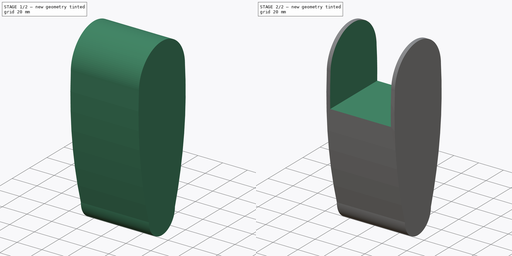
[diagram: build sequence overview — one tinted view per stage of 2, left to right]
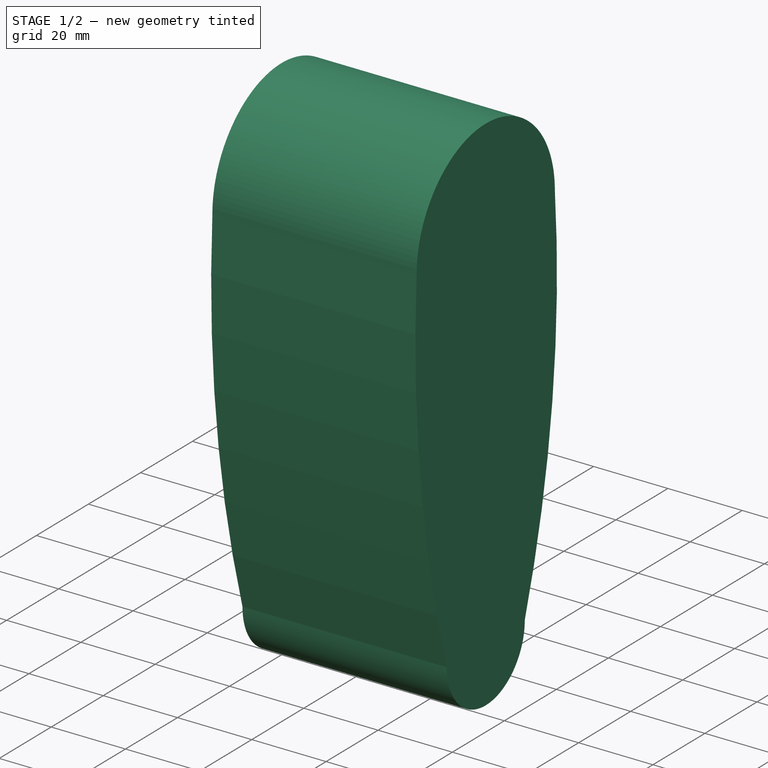
[diagram: stage 1 of 2 — iso view after this stage's code; geometry added in this stage tinted green]
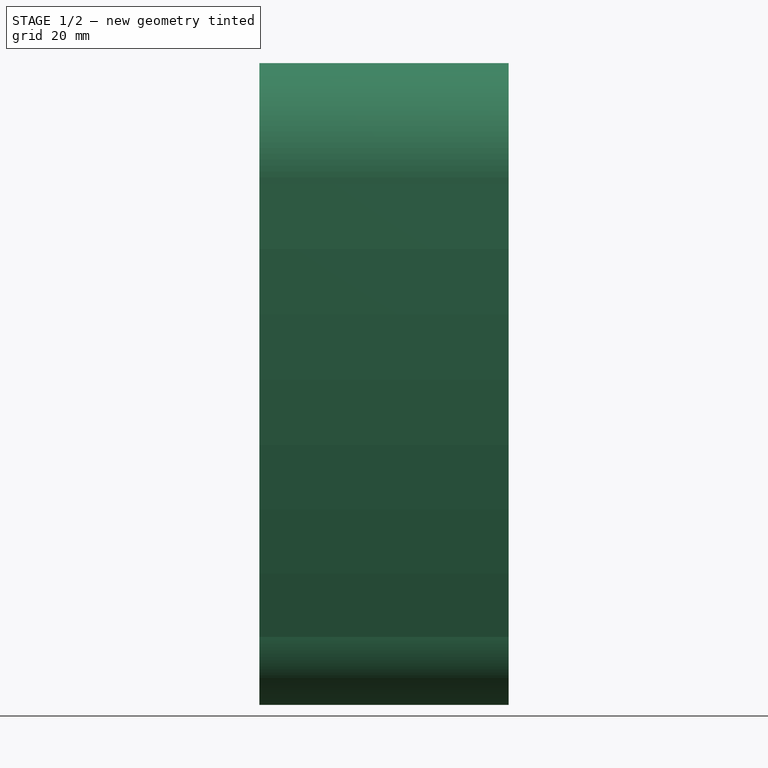
[diagram: stage 1 of 2 — front view after this stage's code; geometry added in this stage tinted green]
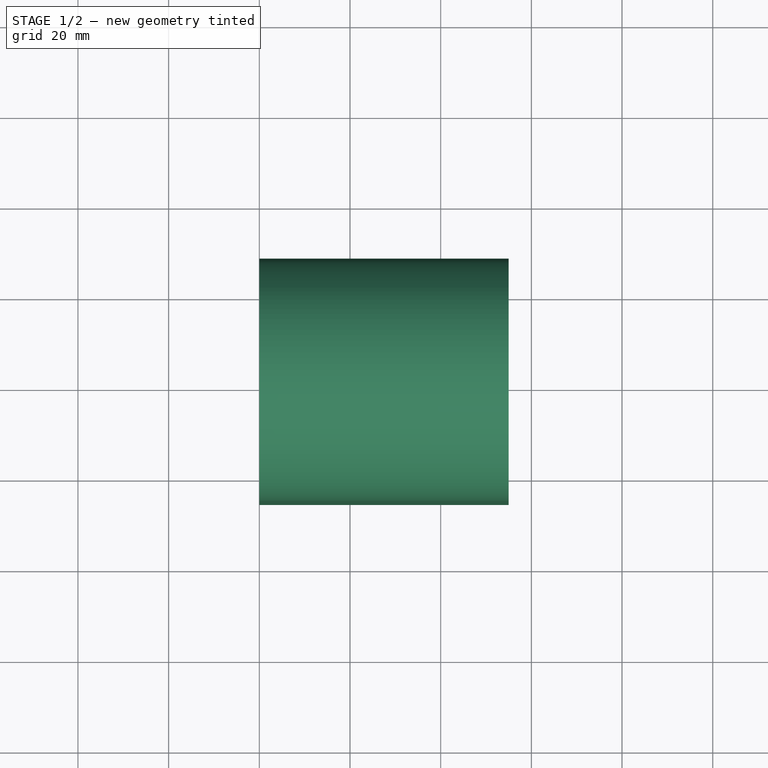
[diagram: stage 1 of 2 — top view after this stage's code; geometry added in this stage tinted green]
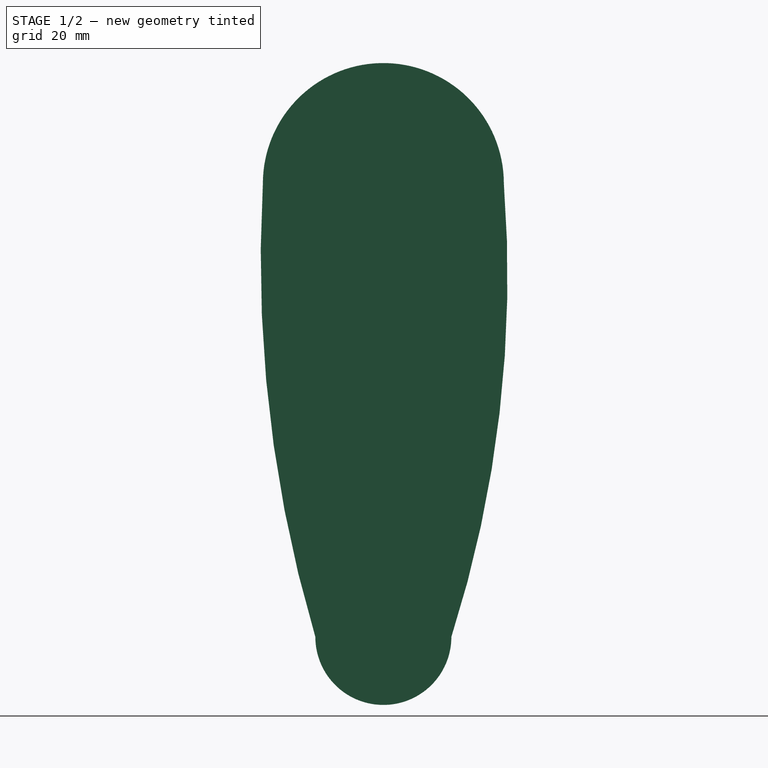
[diagram: stage 1 of 2 — right view after this stage's code; geometry added in this stage tinted green]
FCSTD DOCUMENT  (FreeCAD 0.20R29410 (Git))
Label: upperLeg
License: All rights reserved
LicenseURL: http://en.wikipedia.org/wiki/All_rights_reserved
objects: Sketcher::SketchObject×3, PartDesign::Body×2, PartDesign::Pad×1, PartDesign::Pocket×1
note: 9 computed .brp shape members not serialized (recipe doc carries the construction recipe); baked Part::Feature solids carry a one-line shape summary decoded from their .brp

FEATURE [Sketcher::SketchObject] Sketch
  FullyConstrained = false
  MapMode = 5
  Placement = pos=(0,0,0) rot=(0.57735,0.57735,0.57735;2.0944rad)
  Support = -> [YZ_Plane]
  sketch-geometry (4):
    g0: ArcOfCircle CenterX=266.368 CenterY=83.2383 CenterZ=0 NormalX=0 NormalY=0 NormalZ=1 AngleXU=0 Radius=293.422 StartAngle=3.08444 EndAngle=3.42922
    g1: ArcOfCircle CenterX=-234.629 CenterY=79.5645 CenterZ=0 NormalX=0 NormalY=0 NormalZ=1 AngleXU=0 Radius=262.002 StartAngle=5.97463 EndAngle=6.36126
    g2: ArcOfCircle CenterX=0 CenterY=0 CenterZ=0 NormalX=0 NormalY=0 NormalZ=1 AngleXU=0 Radius=15 StartAngle=3.14159 EndAngle=6.28319
    g3: ArcOfCircle CenterX=0 CenterY=100 CenterZ=0 NormalX=0 NormalY=0 NormalZ=1 AngleXU=0 Radius=26.575 StartAngle=-6.78968e-10 EndAngle=3.14159
  constraints (11):
    c: DistanceX(g0,g1) = 30
    c: Coincident(g2,g-1)
    c: Coincident(g2,g0)
    c: Coincident(g2,g1)
    c: PointOnObject(g3,g-2)
    c: Coincident(g3,g1)
    c: Coincident(g3,g0)
    c: Diameter(g2) = 30
    c: DistanceY(g2,g3) = 100
    c: Diameter(g3) = 53.15
    c: DistanceX(g0,g1) = 53.15
FEATURE [PartDesign::Pad] Pad  label="upperLegPad"
  Direction = (1,-2e-16,3e-16)
  Length = 55
  Length2 = 10
  Placement = pos=(0,0,0) rot=(0.57735,0.57735,0.57735;2.0944rad)
  Profile = -> Sketch
  ReferenceAxis = -> Sketch [N_Axis]
  Type = 0
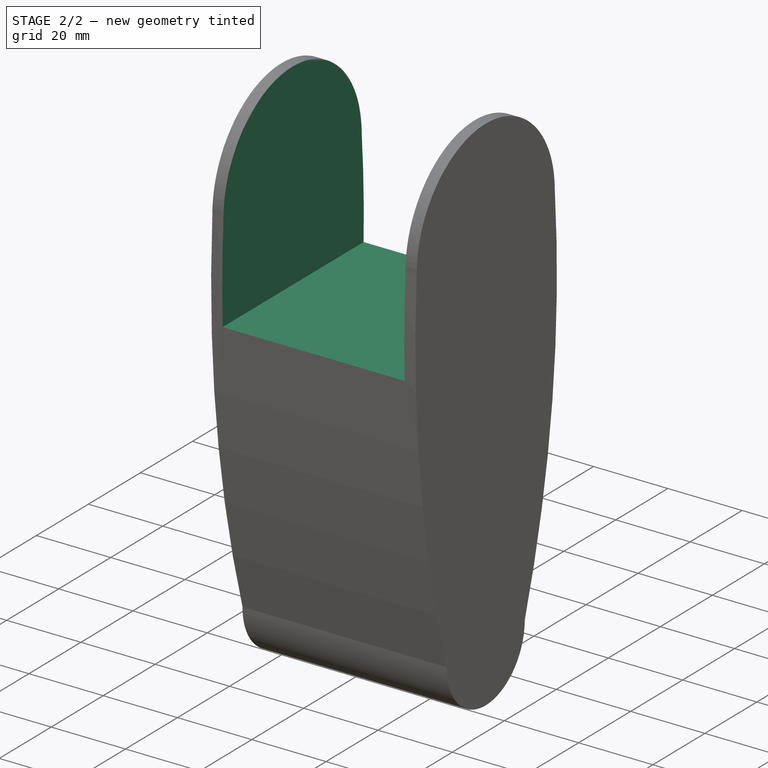
[diagram: stage 2 of 2 — iso view after this stage's code; geometry added in this stage tinted green]
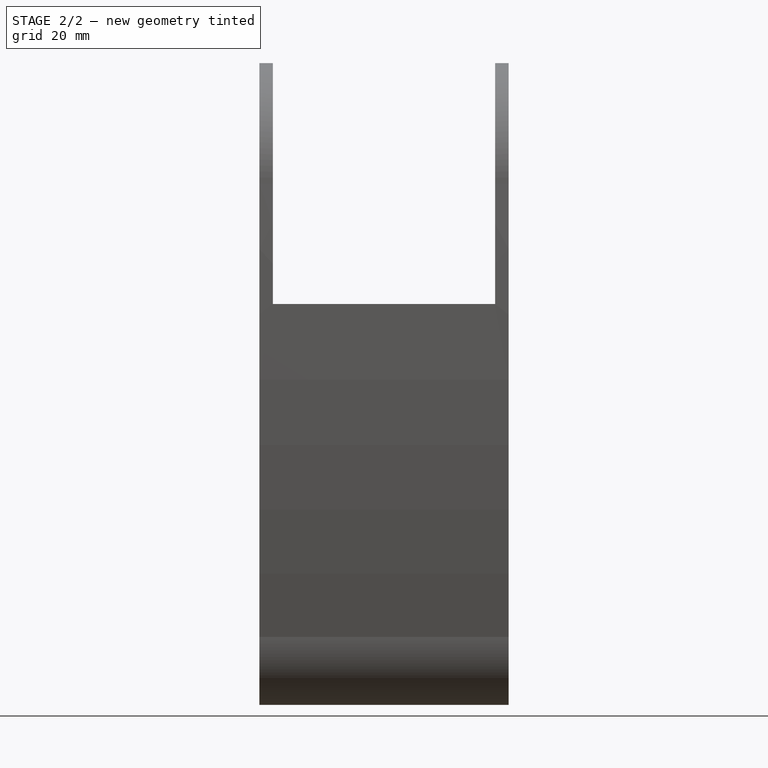
[diagram: stage 2 of 2 — front view after this stage's code; geometry added in this stage tinted green]
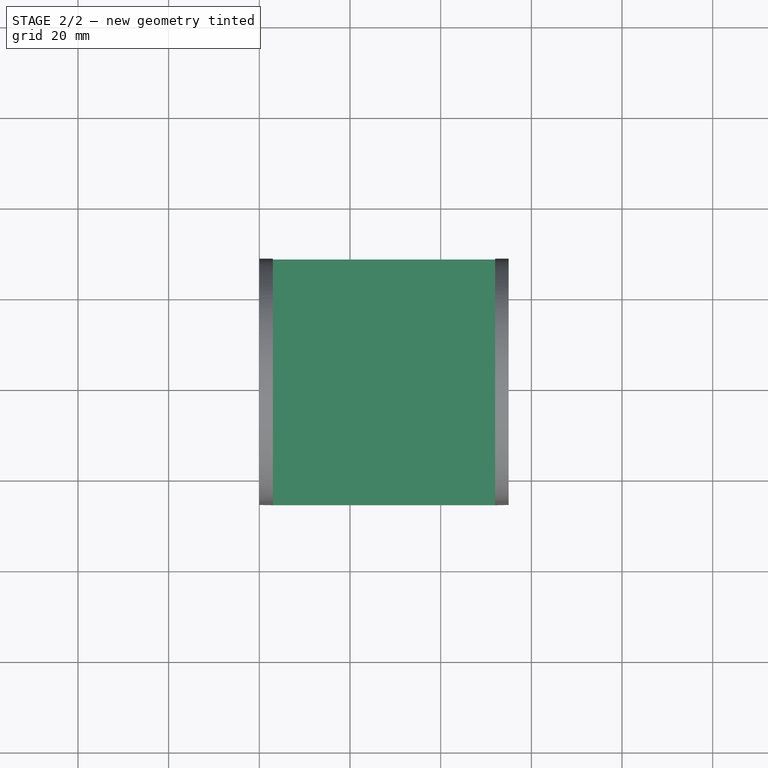
[diagram: stage 2 of 2 — top view after this stage's code; geometry added in this stage tinted green]
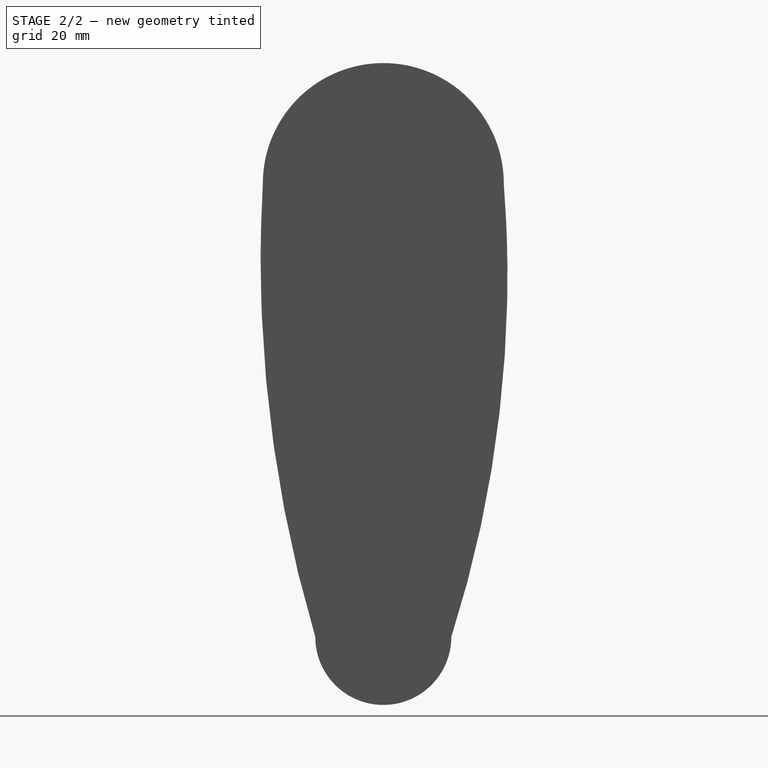
[diagram: stage 2 of 2 — right view after this stage's code; geometry added in this stage tinted green]
FEATURE [Sketcher::SketchObject] Sketch001
  FullyConstrained = true
  MapMode = 5
  Placement = pos=(0,0,0) rot=(0.57735,0.57735,0.57735;2.0944rad)
  Support = -> [YZ_Plane001]
  sketch-geometry (5):
    g0: LineSegment StartX=-26.575 StartY=109.75 StartZ=0 EndX=13.725 EndY=109.75 EndZ=0
    g1: LineSegment StartX=13.725 StartY=109.75 StartZ=0 EndX=13.725 EndY=90.25 EndZ=0
    g2: LineSegment StartX=13.725 StartY=90.25 StartZ=0 EndX=-26.575 EndY=90.25 EndZ=0
    g3: LineSegment StartX=-26.575 StartY=90.25 StartZ=0 EndX=-26.575 EndY=109.75 EndZ=0
    g4: Circle CenterX=0 CenterY=100 CenterZ=0 NormalX=0 NormalY=0 NormalZ=1 AngleXU=0 Radius=2.9
  constraints (15):
    c: Coincident(g0,g1)
    c: Coincident(g1,g2)
    c: Coincident(g2,g3)
    c: Coincident(g3,g0)
    c: Horizontal(g0)
    c: Horizontal(g2)
    c: Vertical(g1)
    c: Vertical(g3)
    c: DistanceX(g0,g0) = 40.3
    c: DistanceY(g1,g1) = 19.5
    c: PointOnObject(g4,g-2)
    c: Diameter(g4) = 5.8
    c: DistanceX(g4,g0) = 13.725
    c: DistanceY(g4,g0) = 9.75
    c: DistanceY(g-1,g4) = 100
FEATURE [PartDesign::Body] Body001  label="femurServo"
  Group = -> [Sketch001]
  Origin = -> Origin001
FEATURE [Sketcher::SketchObject] Sketch003
  AttachmentOffset = pos=(3,0,-50) rot=(0,0,1;0rad)
  FullyConstrained = false
  MapMode = 5
  Placement = pos=(3,50,-1.11e-14) rot=(1,0,0;1.5708rad)
  Support = -> [XZ_Plane]
  sketch-geometry (6):
    g0: LineSegment StartX=0 StartY=126.575 StartZ=0 EndX=49 EndY=126.575 EndZ=0
    g1: LineSegment StartX=49 StartY=126.575 StartZ=0 EndX=49 EndY=73.425 EndZ=0
    g2: LineSegment StartX=0 StartY=73.425 StartZ=0 EndX=0 EndY=126.575 EndZ=0
    g3: LineSegment StartX=49 StartY=73.425 StartZ=0 EndX=49 EndY=-18.3601 EndZ=0
    g4: LineSegment StartX=49 StartY=-18.3601 StartZ=0 EndX=0 EndY=-18.3601 EndZ=0
    g5: LineSegment StartX=0 StartY=-18.3601 StartZ=0 EndX=0 EndY=73.425 EndZ=0
  constraints (15):
    c: Coincident(g0,g1)
    c: Coincident(g2,g0)
    c: Horizontal(g0)
    c: Vertical(g1)
    c: Vertical(g2)
    c: PointOnObject(g0,g-2)
    c: DistanceX(g0,g0) = 49
    c: DistanceY(g1,g1) = 53.15
    c: DistanceY(g-1,g0) = 126.575
    c: Coincident(g3,g4)
    c: Coincident(g4,g5)
    c: Horizontal(g4)
    c: Vertical(g3)
    c: Vertical(g5)
    c: DistanceX(g4,g4) = 49
FEATURE [PartDesign::Pocket] Pocket
  BaseFeature = -> Pad
  Direction = (0,1,-2e-16)
  Length = 500
  Length2 = 5
  Placement = pos=(0,0,0) rot=(0.57735,0.57735,0.57735;2.0944rad)
  Profile = -> Sketch003
  ReferenceAxis = -> Sketch003 [N_Axis]
  Reversed = true
  Type = 0
FEATURE [PartDesign::Body] Body  label="upperLegBody"
  Group = -> [Sketch,Pad,Sketch003,Pocket]
  Origin = -> Origin
  Tip = -> Pocket
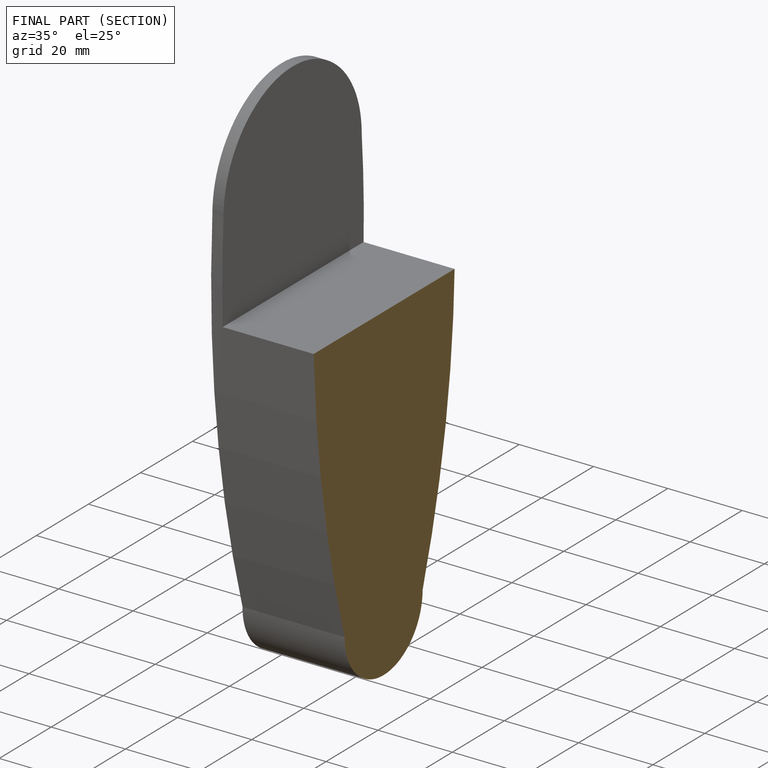
[diagram: finished part — half-section view (interior)]
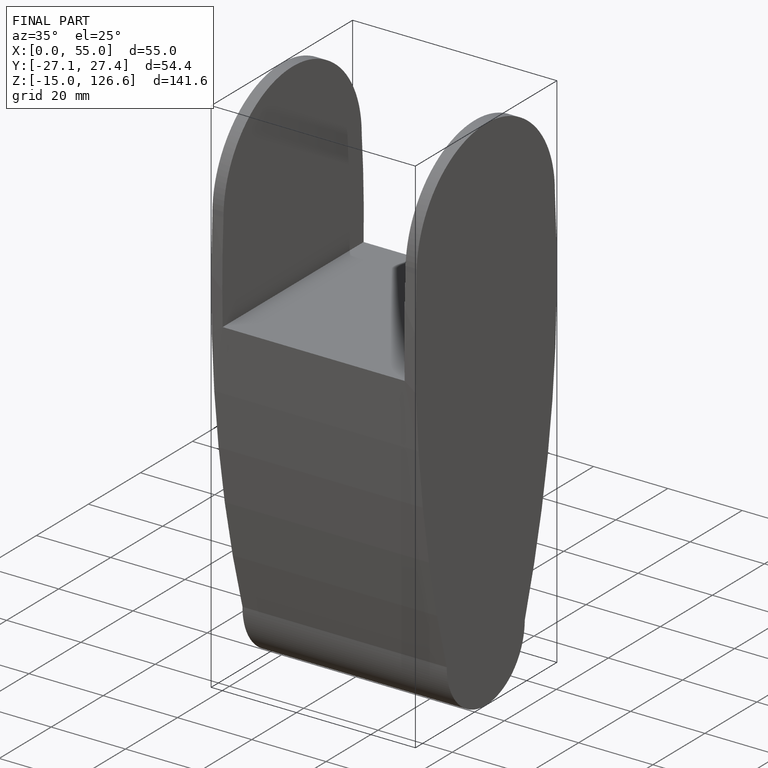
[diagram: finished part — iso view with bounding-box wireframe]
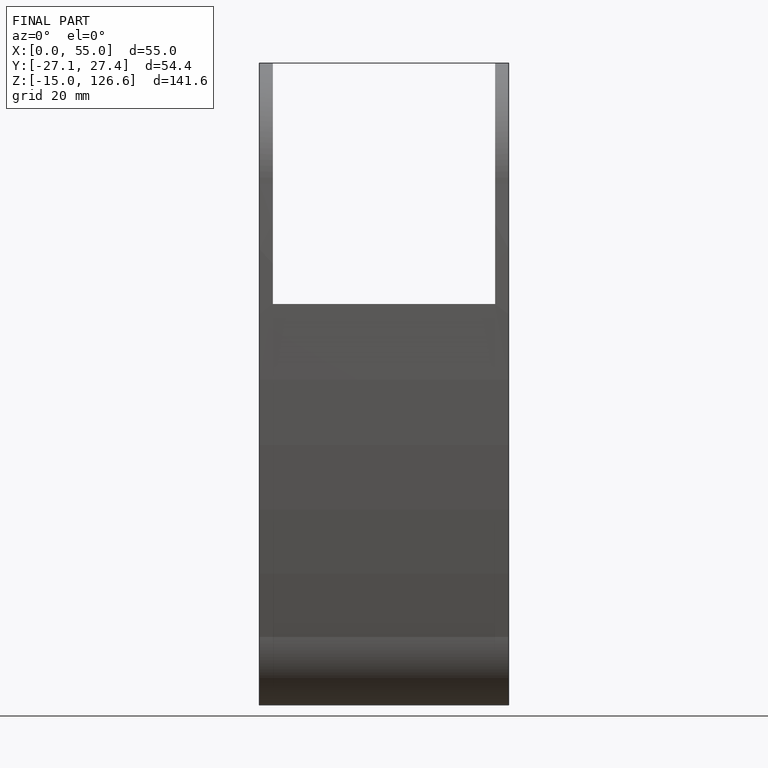
[diagram: finished part — front view with bounding-box wireframe]
